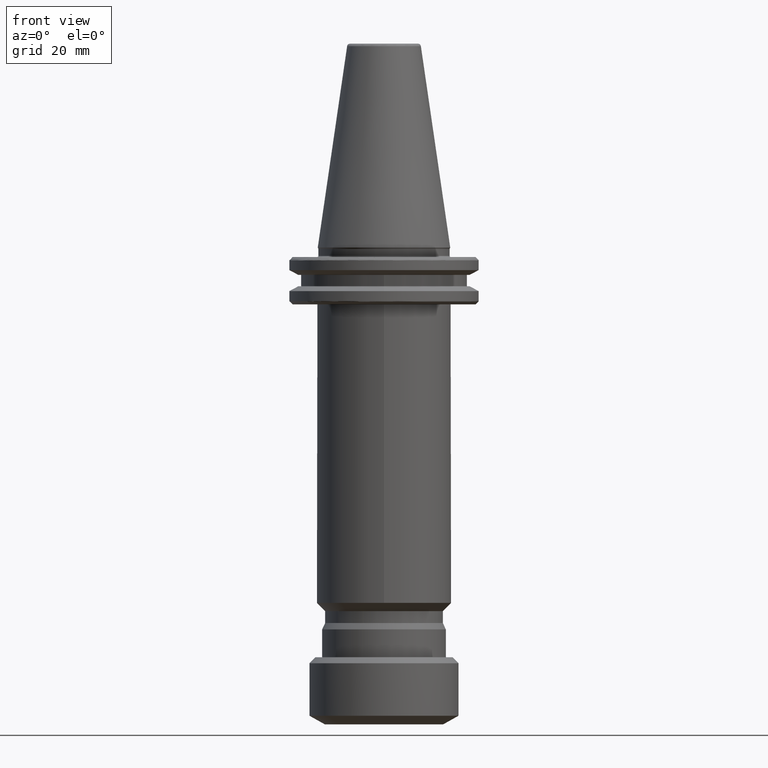
[diagram: clean part render]
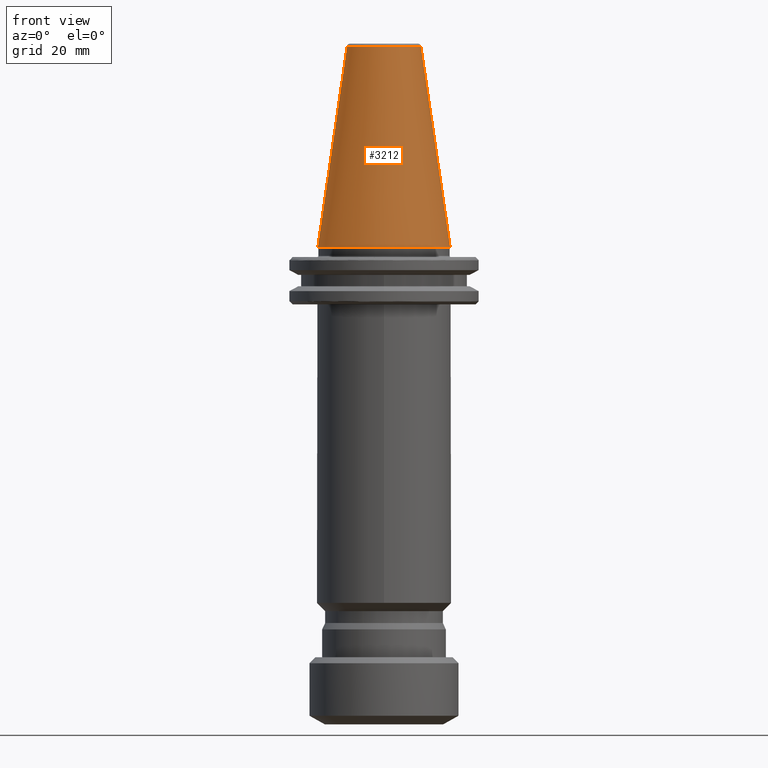
[diagram: same view with one face highlighted and labeled with its STEP entity id]
A machine part, front view. The second image highlights one B-rep face of the part: STEP entity #3212.
In plain terms, the highlighted conical surface has half-angle 8.297 deg.
Its self-contained STEP definition (entity closure, byte-faithful):
#25 = ORIENTED_EDGE ( 'NONE', *, *, #1628, .F. ) ;
#51 = VERTEX_POINT ( 'NONE', #3196 ) ;
#53 = DIRECTION ( 'NONE',  ( 0.0000000000000000000, 0.0000000000000000000, -1.000000000000000000 ) ) ;
#107 = CARTESIAN_POINT ( 'NONE',  ( -22.22499999999999400, 0.0000000000000000000, 0.0000000000000000000 ) ) ;
#414 = VECTOR ( 'NONE', #1460, 1000.000000000000100 ) ;
#483 = CARTESIAN_POINT ( 'NONE',  ( 22.22499999999999400, 2.721777511104992100E-015, 0.0000000000000000000 ) ) ;
#507 = CARTESIAN_POINT ( 'NONE',  ( 0.0000000000000000000, 0.0000000000000000000, 67.54430822701309000 ) ) ;
#526 = EDGE_CURVE ( 'NONE', #1453, #1983, #2646, .T. ) ;
#550 = CARTESIAN_POINT ( 'NONE',  ( 22.22499999999999400, 2.721777511104992100E-015, 0.0000000000000000000 ) ) ;
#586 = DIRECTION ( 'NONE',  ( -1.000000000000000000, 0.0000000000000000000, 0.0000000000000000000 ) ) ;
#760 = DIRECTION ( 'NONE',  ( 1.000000000000000000, 0.0000000000000000000, -2.683064993777401700E-017 ) ) ;
#768 = DIRECTION ( 'NONE',  ( -1.000000000000000000, 0.0000000000000000000, 0.0000000000000000000 ) ) ;
#773 = DIRECTION ( 'NONE',  ( -0.0000000000000000000, -0.0000000000000000000, -1.000000000000000000 ) ) ;
#788 = CARTESIAN_POINT ( 'NONE',  ( 0.0000000000000000000, 0.0000000000000000000, 0.0000000000000000000 ) ) ;
#1197 = VERTEX_POINT ( 'NONE', #483 ) ;
#1402 = ORIENTED_EDGE ( 'NONE', *, *, #526, .T. ) ;
#1413 = CARTESIAN_POINT ( 'NONE',  ( -12.37469537596785900, 0.0000000000000000000, 67.54430822700199100 ) ) ;
#1453 = VERTEX_POINT ( 'NONE', #1413 ) ;
#1460 = DIRECTION ( 'NONE',  ( -0.1443082272694599400, 0.0000000000000000000, -0.9895327864918603800 ) ) ;
#1628 = EDGE_CURVE ( 'NONE', #1197, #1983, #2558, .T. ) ;
#1877 = CARTESIAN_POINT ( 'NONE',  ( 0.0000000000000000000, 0.0000000000000000000, 0.0000000000000000000 ) ) ;
#1923 = ORIENTED_EDGE ( 'NONE', *, *, #2251, .F. ) ;
#1983 = VERTEX_POINT ( 'NONE', #3012 ) ;
#2077 = AXIS2_PLACEMENT_3D ( 'NONE', #788, #773, #760 ) ;
#2095 = CIRCLE ( 'NONE', #2106, 12.37469537599809200 ) ;
#2106 = AXIS2_PLACEMENT_3D ( 'NONE', #507, #2317, #768 ) ;
#2251 = EDGE_CURVE ( 'NONE', #51, #1197, #2493, .T. ) ;
#2314 = CONICAL_SURFACE ( 'NONE', #2420, 22.22499999999999400, 0.1448138465495947800 ) ;
#2317 = DIRECTION ( 'NONE',  ( 0.0000000000000000000, 0.0000000000000000000, -1.000000000000000000 ) ) ;
#2403 = FACE_OUTER_BOUND ( 'NONE', #3084, .T. ) ;
#2420 = AXIS2_PLACEMENT_3D ( 'NONE', #1877, #53, #586 ) ;
#2421 = VECTOR ( 'NONE', #2868, 1000.000000000000100 ) ;
#2438 = EDGE_CURVE ( 'NONE', #51, #1453, #2095, .T. ) ;
#2493 = LINE ( 'NONE', #550, #2421 ) ;
#2558 = CIRCLE ( 'NONE', #2077, 22.22499999999999800 ) ;
#2646 = LINE ( 'NONE', #107, #414 ) ;
#2679 = ORIENTED_EDGE ( 'NONE', *, *, #2438, .T. ) ;
#2868 = DIRECTION ( 'NONE',  ( 0.1443082272694599400, 1.767266086161729200E-017, -0.9895327864918603800 ) ) ;
#3012 = CARTESIAN_POINT ( 'NONE',  ( -22.22499999999999400, 0.0000000000000000000, 0.0000000000000000000 ) ) ;
#3084 = EDGE_LOOP ( 'NONE', ( #1923, #2679, #1402, #25 ) ) ;
#3196 = CARTESIAN_POINT ( 'NONE',  ( 12.37469537596738100, -2.855353720357090700E-009, 67.54430822700527400 ) ) ;
#3212 = ADVANCED_FACE ( 'NONE', ( #2403 ), #2314, .T. ) ;